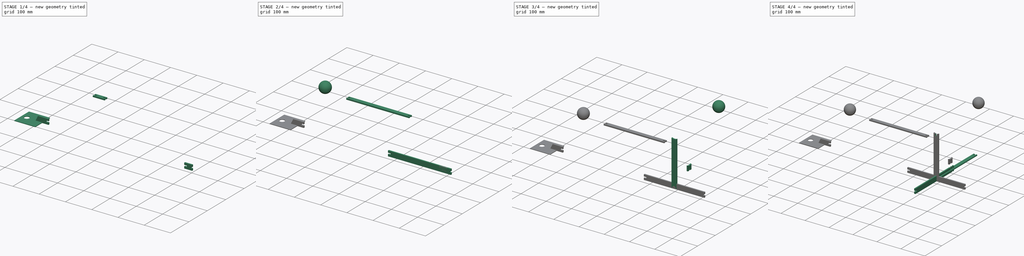
[diagram: build sequence overview — one tinted view per stage of 4, left to right]
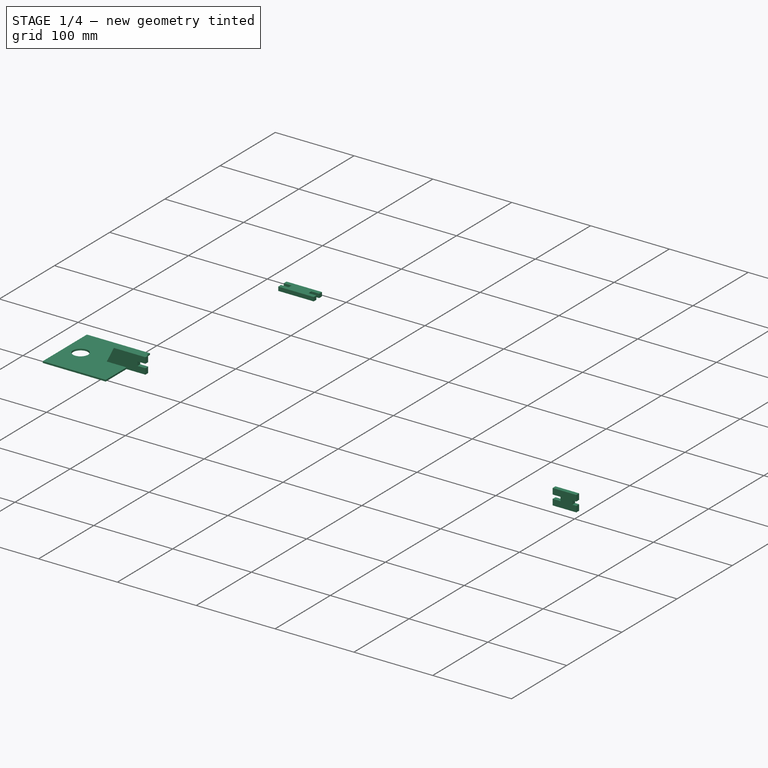
[diagram: stage 1 of 4 — iso view after this stage's code; geometry added in this stage tinted green]
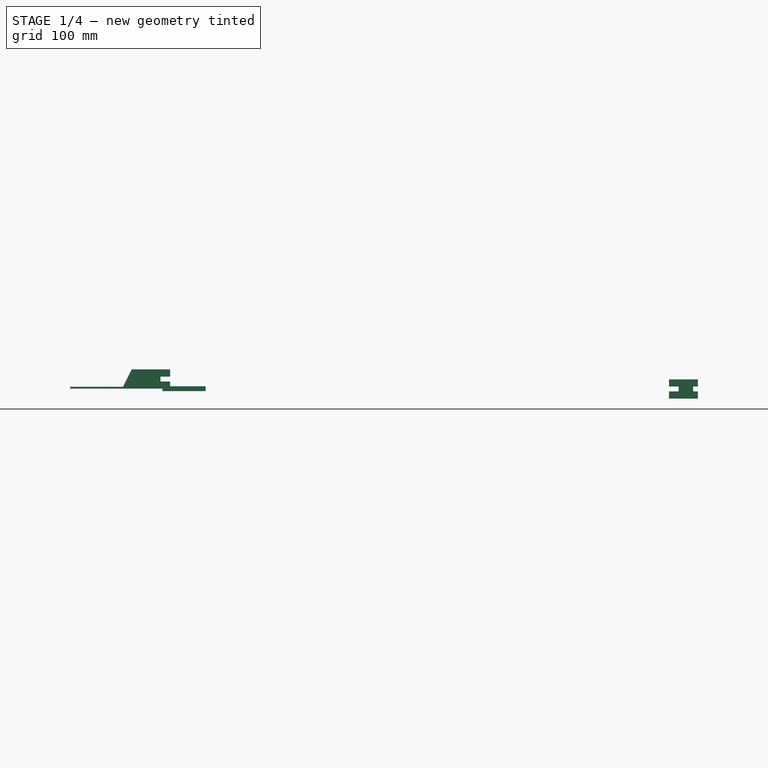
[diagram: stage 1 of 4 — front view after this stage's code; geometry added in this stage tinted green]
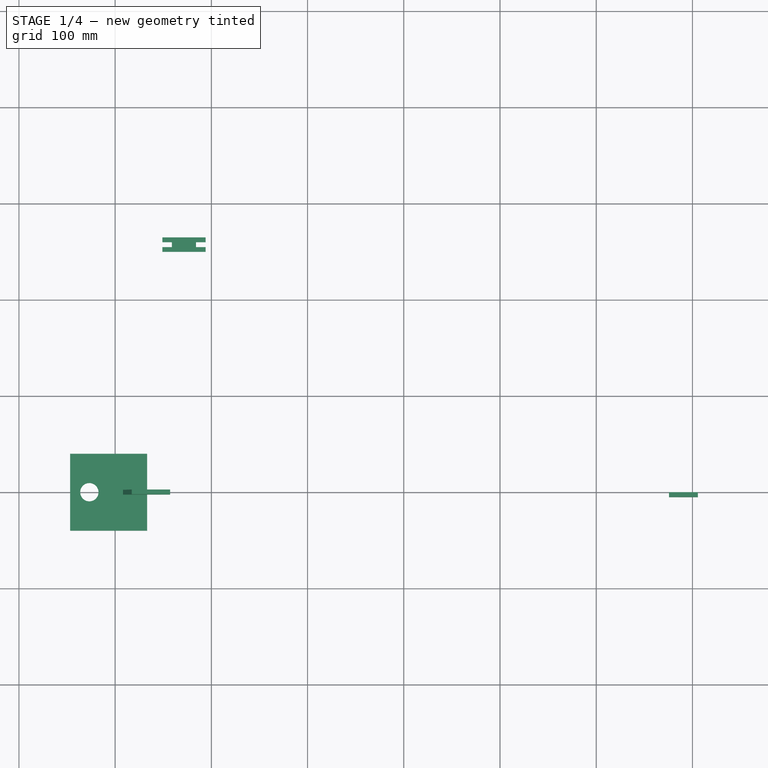
[diagram: stage 1 of 4 — top view after this stage's code; geometry added in this stage tinted green]
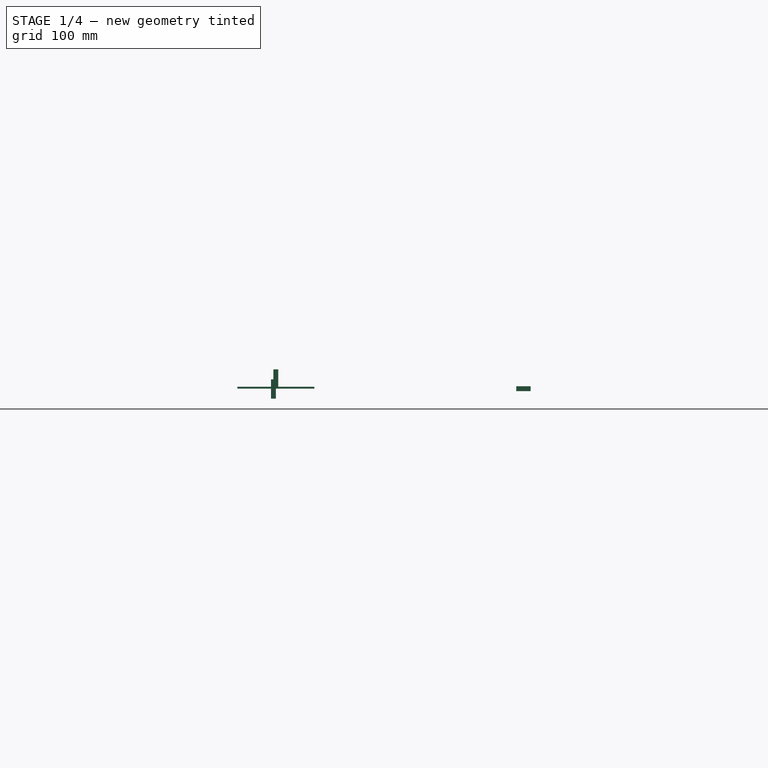
[diagram: stage 1 of 4 — right view after this stage's code; geometry added in this stage tinted green]
FCSTD DOCUMENT  (FreeCAD 1.0R39109 (Git))
Label: CalibrationRig
License: All rights reserved
LicenseURL: http://en.wikipedia.org/wiki/All_rights_reserved
objects: Sketcher::SketchObject×12, PartDesign::Pad×11, PartDesign::Body×9, Part::Sphere×2, App::Link×1, PartDesign::Pocket×1, App::Part×1
note: 71 computed .brp shape members not serialized (recipe doc carries the construction recipe); baked Part::Feature solids carry a one-line shape summary decoded from their .brp
EXTERNAL_REF file=../Master Document.FCStd obj=Spreadsheet

FEATURE [Sketcher::SketchObject] Sketch008  label="X-Axis Ball Holder Vertical Sketch"
  ArcFitTolerance = 1e-06
  AttachmentSupport = -> [XZ_Plane007]
  FullyConstrained = false
  MakeInternals = false
  MapMode = 5
  Placement = pos=(0,0,0) rot=(1,0,0;1.5708rad)
  expr: Constraints[15] = <<Monitor Chassis Parameters>>.GSCalibrationToolVerticalLegHeight
  expr: Constraints[16] = <<Monitor Chassis Parameters>>.GSCalibrationDefaultLegThickness + 0.5 * <<Monitor Chassis Parameters>>.GSPartFitExtraToleranceDistance
  expr: Constraints[17] = <<Monitor Chassis Parameters>>.GSCalibrationDefaultLegCutoutDepth
  expr: Constraints[19] = 5 * <<Monitor Chassis Parameters>>.GSCalibrationDefaultLegCutoutDepth
  expr: Constraints[20] = 4 * <<Monitor Chassis Parameters>>.GSCalibrationDefaultLegCutoutDepth
  expr: Constraints[22] = 0.5 * (<<Monitor Chassis Parameters>>.GSCalibrationToolVerticalLegHeight - <<Monitor Chassis Parameters>>.GSCalibrationDefaultLegThickness)
  sketch-geometry (8):
    g0: LineSegment StartX=-482.795 StartY=20 StartZ=0 EndX=-442.795 EndY=20 EndZ=0
    g1: LineSegment StartX=-442.795 StartY=20 StartZ=0 EndX=-442.795 EndY=12.5 EndZ=0
    g2: LineSegment StartX=-442.795 StartY=12.5 StartZ=0 EndX=-452.795 EndY=12.5 EndZ=0
    g3: LineSegment StartX=-452.795 StartY=12.5 StartZ=0 EndX=-452.795 EndY=7.4 EndZ=0
    g4: LineSegment StartX=-452.795 StartY=7.4 StartZ=0 EndX=-442.795 EndY=7.4 EndZ=0
    g5: LineSegment StartX=-442.795 StartY=7.4 StartZ=0 EndX=-442.795 EndY=0 EndZ=0
    g6: LineSegment StartX=-442.795 StartY=0 StartZ=0 EndX=-492.795 EndY=0 EndZ=0
    g7: LineSegment StartX=-492.795 StartY=0 StartZ=0 EndX=-482.795 EndY=20 EndZ=0
  constraints (23):
    c: Horizontal(g0)
    c: Coincident(g1,g0)
    c: Vertical(g1)
    c: Coincident(g2,g1)
    c: Horizontal(g2)
    c: Coincident(g3,g2)
    c: Vertical(g3)
    c: Coincident(g4,g3)
    c: Horizontal(g4)
    c: Coincident(g5,g4)
    c: Vertical(g5)
    c: Coincident(g6,g5)
    c: Horizontal(g6)
    c: Coincident(g7,g6)
    c: Coincident(g7,g0)
    c: DistanceY(g5,g0) = 20
    c: DistanceY(g4,g1) = 5.1
    c: DistanceX(g2,g1) = 10
    c: Vertical(g0,g5)
    c: DistanceX(g6,g5) = 50
    c: DistanceX(g0,g0) = 40
    c: Horizontal(g-1,g5)
    c: DistanceY(g1,g0) = 7.5
FEATURE [PartDesign::Pad] Pad007  label="X-Axis Ball Holder Vertical Pad"
  Direction = (0,-1,2e-16)
  Length = 2.5
  Length2 = 2.5
  Placement = pos=(0,0,0) rot=(1,0,0;1.5708rad)
  Profile = -> Sketch008
  ReferenceAxis = -> Sketch008 [N_Axis]
  Suppressed = false
  Type = 4
  expr: Length = 0.5 * <<Monitor Chassis Parameters>>.GSCalibrationDefaultLegThickness
  expr: Length2 = 0.5 * <<Monitor Chassis Parameters>>.GSCalibrationDefaultLegThickness
FEATURE [Sketcher::SketchObject] Sketch009  label="X-Axis Ball Holder Plate Sketch"
  ArcFitTolerance = 1e-06
  AttachmentSupport = -> [XY_Plane007]
  ExternalGeometry = -> [Sketch008]
  FullyConstrained = true
  MakeInternals = false
  MapMode = 5
  expr: Constraints[10] = <<Monitor Chassis Parameters>>.GSCalibrationToolGroundBallPlateWidth
  expr: Constraints[11] = 0.5 * <<Monitor Chassis Parameters>>.GSCalibrationToolGroundBallPlateLength
  expr: Constraints[12] = 20
  expr: Constraints[13] = <<Monitor Chassis Parameters>>.GSCalibrationToolGroundBallHolderHoleRadius
  expr: Constraints[14] = 0.3 * <<Monitor Chassis Parameters>>.GSCalibrationToolGroundBallPlateWidth
  expr: Constraints[9] = <<Monitor Chassis Parameters>>.GSCalibrationToolGroundBallPlateLength
  sketch-geometry (5):
    g0: LineSegment StartX=-466.795 StartY=40 StartZ=0 EndX=-546.795 EndY=40 EndZ=0
    g1: LineSegment StartX=-546.795 StartY=40 StartZ=0 EndX=-546.795 EndY=-40 EndZ=0
    g2: LineSegment StartX=-546.795 StartY=-40 StartZ=0 EndX=-466.795 EndY=-40 EndZ=0
    g3: LineSegment StartX=-466.795 StartY=-40 StartZ=0 EndX=-466.795 EndY=40 EndZ=0
    g4: Circle CenterX=-526.795 CenterY=0 CenterZ=0 NormalX=0 NormalY=0 NormalZ=1 AngleXU=0 Radius=9.5
  constraints (15):
    c: Coincident(g0,g1)
    c: Coincident(g1,g2)
    c: Coincident(g2,g3)
    c: Coincident(g3,g0)
    c: Horizontal(g0)
    c: Horizontal(g2)
    c: Vertical(g1)
    c: Vertical(g3)
    c: PointOnObject(g4,g-1)
    c: DistanceX(g0,g0) = 80
    c: DistanceY(g1,g0) = 80
    c: DistanceY(g-1,g0) = 40
    c: DistanceX(g0,g4) = 20
    c: Diameter(g4) = 19
    c: DistanceX(g2,g-3) = 24
FEATURE [PartDesign::Pad] Pad008  label="X-Axis Ball Holder Plate Pad"
  BaseFeature = -> Pad007
  Direction = (0,0,1)
  Length = 2
  Length2 = 10
  Placement = pos=(0,0,0) rot=(1,0,0;1.5708rad)
  Profile = -> Sketch009
  ReferenceAxis = -> Sketch009 [N_Axis]
  Suppressed = false
  Type = 0
  expr: Length = <<Monitor Chassis Parameters>>.GSCalibrationToolGroundBallHolderPlateThickness
FEATURE [PartDesign::Body] Body006  label="X-Axis Ball Holder Body"
  AllowCompound = false
  Group = -> [Sketch008,Pad007,Sketch009,Pad008]
  Origin = -> Origin007
  Placement = pos=(4.1,263,-9.7) rot=(0,0,1;0rad)
  Tip = -> Pad008
FEATURE [Sketcher::SketchObject] Sketch010  label="X Axis Far Leg Sketch Short Version"
  ArcFitTolerance = 1e-06
  AttachmentSupport = -> [XY_Plane006]
  FullyConstrained = false
  MakeInternals = false
  MapMode = 5
  expr: Constraints[26] = <<Monitor Chassis Parameters>>.GSCalibrationDefaultLegThickness + 0.5 * <<Monitor Chassis Parameters>>.GSPartFitExtraToleranceDistance
  expr: Constraints[27] = <<Monitor Chassis Parameters>>.GSCalibrationDefaultLegThickness + 0.5 * <<Monitor Chassis Parameters>>.GSPartFitExtraToleranceDistance
  expr: Constraints[28] = <<Monitor Chassis Parameters>>.GSCalibrationToolXAxisHorizontalLegWidth
  expr: Constraints[29] = 0.5 * (<<Monitor Chassis Parameters>>.GSCalibrationToolXAxisHorizontalLegWidth - <<Monitor Chassis Parameters>>.GSCalibrationDefaultLegThickness)
  expr: Constraints[30] = 0.5 * (<<Monitor Chassis Parameters>>.GSCalibrationToolXAxisHorizontalLegWidth - <<Monitor Chassis Parameters>>.GSCalibrationDefaultLegThickness)
  expr: Constraints[31] = <<Monitor Chassis Parameters>>.GSCalibrationDefaultLegCutoutDepth
  expr: Constraints[32] = <<Monitor Chassis Parameters>>.GSCalibrationDefaultLegCutoutDepth
  expr: Constraints[33] = <<Monitor Chassis Parameters>>.GSCalibrationToolXAxisFarLegLengthShortVersion
  sketch-geometry (12):
    g0: LineSegment StartX=-405.965 StartY=264.845 StartZ=0 EndX=-405.965 EndY=259.845 EndZ=0
    g1: LineSegment StartX=-405.965 StartY=259.845 StartZ=0 EndX=-415.965 EndY=259.845 EndZ=0
    g2: LineSegment StartX=-415.965 StartY=259.845 StartZ=0 EndX=-415.965 EndY=254.745 EndZ=0
    g3: LineSegment StartX=-415.965 StartY=254.745 StartZ=0 EndX=-405.965 EndY=254.745 EndZ=0
    g4: LineSegment StartX=-405.965 StartY=254.745 StartZ=0 EndX=-405.965 EndY=249.845 EndZ=0
    g5: LineSegment StartX=-405.965 StartY=249.845 StartZ=0 EndX=-450.965 EndY=249.845 EndZ=0
    g6: LineSegment StartX=-450.965 StartY=249.845 StartZ=0 EndX=-450.965 EndY=254.745 EndZ=0
    g7: LineSegment StartX=-450.965 StartY=254.745 StartZ=0 EndX=-440.965 EndY=254.745 EndZ=0
    g8: LineSegment StartX=-440.965 StartY=254.745 StartZ=0 EndX=-440.965 EndY=259.845 EndZ=0
    g9: LineSegment StartX=-440.965 StartY=259.845 StartZ=0 EndX=-450.965 EndY=259.845 EndZ=0
    g10: LineSegment StartX=-450.965 StartY=259.845 StartZ=0 EndX=-450.965 EndY=264.845 EndZ=0
    g11: LineSegment StartX=-450.965 StartY=264.845 StartZ=0 EndX=-405.965 EndY=264.845 EndZ=0
  constraints (34):
    c: Vertical(g0)
    c: Coincident(g1,g0)
    c: Horizontal(g1)
    c: Coincident(g2,g1)
    c: Vertical(g2)
    c: Coincident(g3,g2)
    c: Horizontal(g3)
    c: Coincident(g4,g3)
    c: Vertical(g4)
    c: Coincident(g5,g4)
    c: Horizontal(g5)
    c: Coincident(g6,g5)
    c: Vertical(g6)
    c: Coincident(g7,g6)
    c: Horizontal(g7)
    c: Coincident(g8,g7)
    c: Vertical(g8)
    c: Coincident(g9,g8)
    c: Horizontal(g9)
    c: Coincident(g10,g9)
    c: Vertical(g10)
    c: Coincident(g11,g10)
    c: Coincident(g11,g0)
    c: Horizontal(g11)
    c: Vertical(g10,g5)
    c: Vertical(g0,g4)
    c: DistanceY(g7,g8) = 5.1
    c: DistanceY(g2,g1) = 5.1
    c: DistanceY(g5,g10) = 15
    c: DistanceY(g9,g10) = 5
    c: DistanceY(g0,g0) = 5
    c: DistanceX(g6,g7) = 10
    c: DistanceX(g1,g0) = 10
    c: DistanceX(g10,g0) = 45
FEATURE [PartDesign::Pad] Pad009  label="X Axis Far Leg Pad Short Version"
  Direction = (0,0,1)
  Length = 2.5
  Length2 = 2.5
  Profile = -> Sketch010
  ReferenceAxis = -> Sketch010 [N_Axis]
  Suppressed = false
  Type = 4
  expr: Length = 0.5 * <<Monitor Chassis Parameters>>.GSCalibrationDefaultLegThickness
  expr: Length2 = 0.5 * <<Monitor Chassis Parameters>>.GSCalibrationDefaultLegThickness
FEATURE [PartDesign::Body] Body007  label="X Axis Far Leg Short Version"
  AllowCompound = false
  Group = -> [Sketch010,Pad009]
  Origin = -> Origin008
  Placement = pos=(92.8,70.8,0) rot=(0,0,1;0rad)
  Tip = -> Pad009
FEATURE [Sketcher::SketchObject] Sketch011  label="X Axis Near Leg Sketch Short Version"
  ArcFitTolerance = 1e-06
  AttachmentSupport = -> [XZ_Plane005]
  FullyConstrained = false
  MakeInternals = false
  MapMode = 5
  Placement = pos=(0,0,0) rot=(1,0,0;1.5708rad)
  expr: Constraints[24] = <<Monitor Chassis Parameters>>.GSCalibrationToolVerticalLegHeight
  expr: Constraints[25] = <<Monitor Chassis Parameters>>.GSCalibrationDefaultLegCutoutWidth
  expr: Constraints[26] = <<Monitor Chassis Parameters>>.GSCalibrationDefaultLegCutoutWidth
  expr: Constraints[27] = 0.5 * (<<Monitor Chassis Parameters>>.GSCalibrationToolVerticalLegHeight - <<Monitor Chassis Parameters>>.GSCalibrationDefaultLegCutoutWidth)
  expr: Constraints[28] = <<Monitor Chassis Parameters>>.GSCalibrationDefaultLegCutoutDepth
  expr: Constraints[29] = <<Monitor Chassis Parameters>>.GSCalibrationDefaultLegThickness
  expr: Constraints[30] = <<Monitor Chassis Parameters>>.GSCalibrationToolXAxisNearLegLengthShortVersion
  expr: Constraints[33] = 0.5 * (<<Monitor Chassis Parameters>>.GSCalibrationToolVerticalLegHeight - <<Monitor Chassis Parameters>>.GSCalibrationDefaultLegCutoutWidth)
  sketch-geometry (12):
    g0: LineSegment StartX=75.6624 StartY=9.716 StartZ=0 EndX=75.6624 EndY=2.216 EndZ=0
    g1: LineSegment StartX=75.6624 StartY=2.216 StartZ=0 EndX=85.6624 EndY=2.216 EndZ=0
    g2: LineSegment StartX=85.6624 StartY=2.216 StartZ=0 EndX=85.6624 EndY=-2.784 EndZ=0
    g3: LineSegment StartX=85.6624 StartY=-2.784 StartZ=0 EndX=75.6624 EndY=-2.784 EndZ=0
    g4: LineSegment StartX=75.6624 StartY=-2.784 StartZ=0 EndX=75.6624 EndY=-10.284 EndZ=0
    g5: LineSegment StartX=75.6624 StartY=-10.284 StartZ=0 EndX=105.662 EndY=-10.284 EndZ=0
    g6: LineSegment StartX=105.662 StartY=-10.284 StartZ=0 EndX=105.662 EndY=-2.784 EndZ=0
    g7: LineSegment StartX=105.662 StartY=-2.784 StartZ=0 EndX=100.662 EndY=-2.784 EndZ=0
    g8: LineSegment StartX=100.662 StartY=-2.784 StartZ=0 EndX=100.662 EndY=2.216 EndZ=0
    g9: LineSegment StartX=100.662 StartY=2.216 StartZ=0 EndX=105.662 EndY=2.216 EndZ=0
    g10: LineSegment StartX=105.662 StartY=2.216 StartZ=0 EndX=105.662 EndY=9.716 EndZ=0
    g11: LineSegment StartX=75.6624 StartY=9.716 StartZ=0 EndX=105.662 EndY=9.716 EndZ=0
  constraints (34):
    c: Vertical(g0)
    c: Coincident(g1,g0)
    c: Horizontal(g1)
    c: Coincident(g2,g1)
    c: Vertical(g2)
    c: Coincident(g3,g2)
    c: Horizontal(g3)
    c: Coincident(g4,g3)
    c: Vertical(g4)
    c: Coincident(g5,g4)
    c: Horizontal(g5)
    c: Coincident(g6,g5)
    c: Vertical(g6)
    c: Coincident(g7,g6)
    c: Horizontal(g7)
    c: Coincident(g8,g7)
    c: Vertical(g8)
    c: Coincident(g9,g8)
    c: Horizontal(g9)
    c: Coincident(g10,g9)
    c: Vertical(g10)
    c: Coincident(g11,g0)
    c: Coincident(g11,g10)
    c: Horizontal(g11)
    c: DistanceY(g4,g0) = 20
    c: DistanceY(g7,g8) = 5
    c: DistanceY(g2,g1) = 5
    c: DistanceY(g8,g10) = 7.5
    c: DistanceX(g0,g1) = 10
    c: DistanceX(g7,g6) = 5
    c: DistanceX(g4,g5) = 30
    c: Vertical(g4,g0)
    c: Vertical(g10,g5)
    c: DistanceY(g0,g0) = 7.5
FEATURE [PartDesign::Pad] Pad010  label="X Axis Near Leg Pad Short Version"
  Direction = (0,-1,2e-16)
  Length = 5
  Length2 = 10
  Placement = pos=(0,0,0) rot=(1,0,0;1.5708rad)
  Profile = -> Sketch011
  ReferenceAxis = -> Sketch011 [N_Axis]
  Suppressed = false
  Type = 0
  expr: Length = <<Monitor Chassis Parameters>>.GSCalibrationDefaultLegThickness
FEATURE [PartDesign::Body] Body008  label="X Axis Near Leg Short Version"
  AllowCompound = false
  Group = -> [Sketch011,Pad010]
  Origin = -> Origin009
  Placement = pos=(-117.7,296,0.3) rot=(0,0,1;0rad)
  Tip = -> Pad010
FEATURE [App::Part] Part  label="Calibration Rig"
  Group = -> [Body,Body001,Body002,Sphere,Body003,Body004,Body005,Body006,Body007,Body008]
  Origin = -> Origin
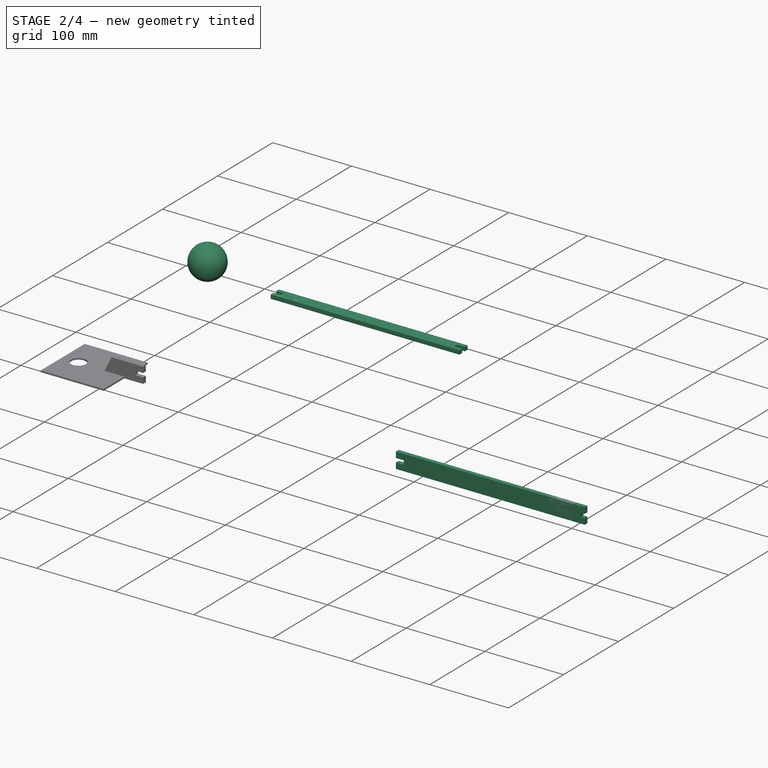
[diagram: stage 2 of 4 — iso view after this stage's code; geometry added in this stage tinted green]
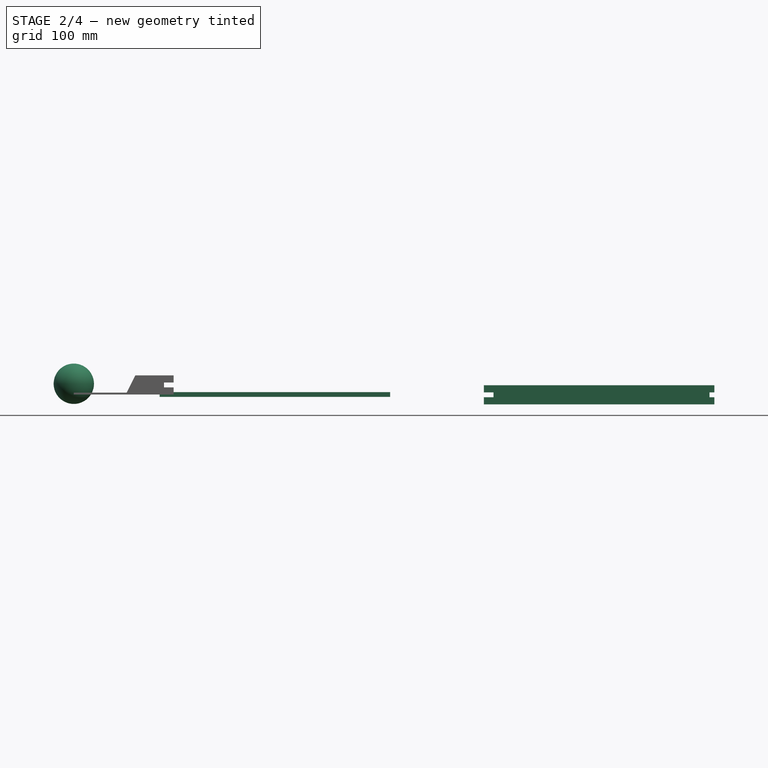
[diagram: stage 2 of 4 — front view after this stage's code; geometry added in this stage tinted green]
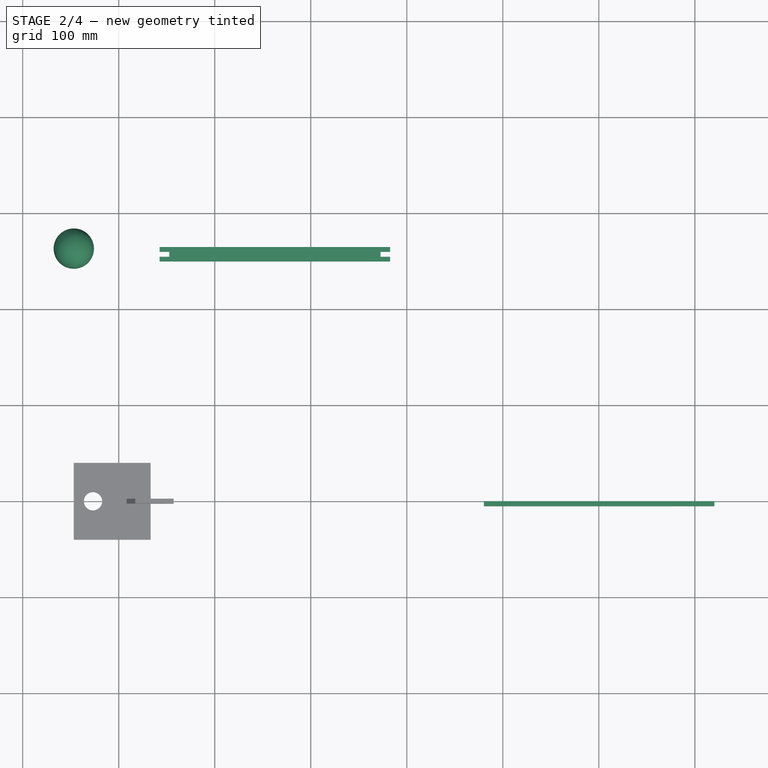
[diagram: stage 2 of 4 — top view after this stage's code; geometry added in this stage tinted green]
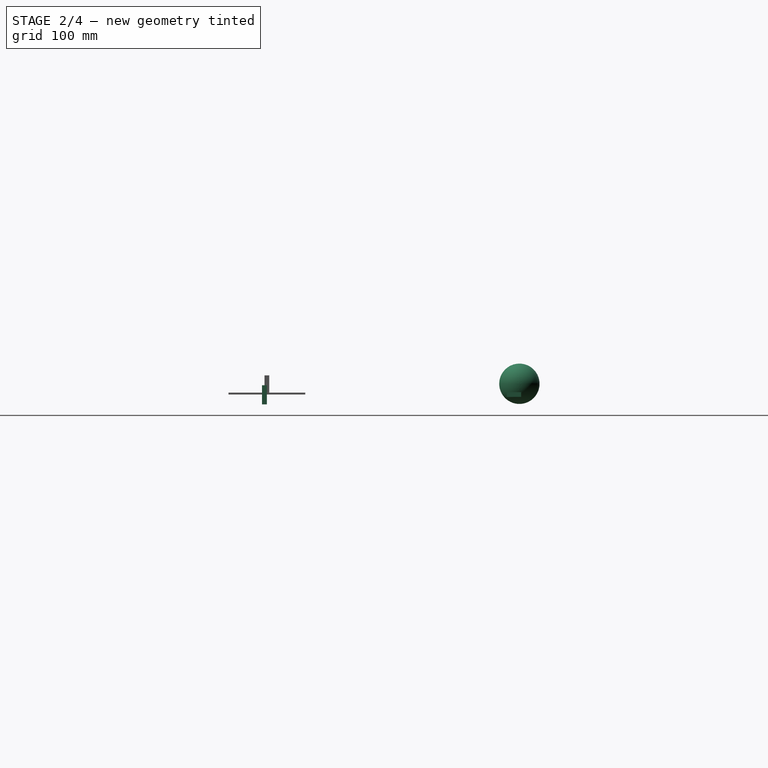
[diagram: stage 2 of 4 — right view after this stage's code; geometry added in this stage tinted green]
FEATURE [PartDesign::Body] Body003  label="High Ball Holder Cross Body"
  AllowCompound = false
  Group = -> [Sketch005,Pad004]
  Origin = -> Origin004
  Placement = pos=(0,168.1,125.7) rot=(0,0,1;0rad)
  Tip = -> Pad004
FEATURE [Sketcher::SketchObject] Sketch006  label="X Axis Near Leg Sketch"
  ArcFitTolerance = 1e-06
  AttachmentSupport = -> [XZ_Plane005]
  FullyConstrained = false
  MakeInternals = false
  MapMode = 5
  Placement = pos=(0,0,0) rot=(1,0,0;1.5708rad)
  expr: Constraints[24] = <<Monitor Chassis Parameters>>.GSCalibrationToolVerticalLegHeight
  expr: Constraints[25] = <<Monitor Chassis Parameters>>.GSCalibrationDefaultLegCutoutWidth
  expr: Constraints[26] = <<Monitor Chassis Parameters>>.GSCalibrationDefaultLegCutoutWidth + 0.5 * <<Monitor Chassis Parameters>>.GSPartFitExtraToleranceDistance
  expr: Constraints[27] = 0.5 * (<<Monitor Chassis Parameters>>.GSCalibrationToolVerticalLegHeight - <<Monitor Chassis Parameters>>.GSCalibrationDefaultLegCutoutWidth)
  expr: Constraints[28] = <<Monitor Chassis Parameters>>.GSCalibrationDefaultLegCutoutDepth
  expr: Constraints[29] = <<Monitor Chassis Parameters>>.GSCalibrationDefaultLegThickness
  expr: Constraints[30] = <<Monitor Chassis Parameters>>.GSCalibrationToolXAxisNearLegLength
  expr: Constraints[33] = 0.5 * (<<Monitor Chassis Parameters>>.GSCalibrationToolVerticalLegHeight - <<Monitor Chassis Parameters>>.GSCalibrationDefaultLegCutoutWidth)
  sketch-geometry (12):
    g0: LineSegment StartX=-119.681 StartY=9.716 StartZ=0 EndX=-119.681 EndY=2.216 EndZ=0
    g1: LineSegment StartX=-119.681 StartY=2.216 StartZ=0 EndX=-109.681 EndY=2.216 EndZ=0
    g2: LineSegment StartX=-109.681 StartY=2.216 StartZ=0 EndX=-109.681 EndY=-2.884 EndZ=0
    g3: LineSegment StartX=-109.681 StartY=-2.884 StartZ=0 EndX=-119.681 EndY=-2.884 EndZ=0
    g4: LineSegment StartX=-119.681 StartY=-2.884 StartZ=0 EndX=-119.681 EndY=-10.284 EndZ=0
    g5: LineSegment StartX=-119.681 StartY=-10.284 StartZ=0 EndX=120.319 EndY=-10.284 EndZ=0
    g6: LineSegment StartX=120.319 StartY=-10.284 StartZ=0 EndX=120.319 EndY=-2.784 EndZ=0
    g7: LineSegment StartX=120.319 StartY=-2.784 StartZ=0 EndX=115.319 EndY=-2.784 EndZ=0
    g8: LineSegment StartX=115.319 StartY=-2.784 StartZ=0 EndX=115.319 EndY=2.216 EndZ=0
    g9: LineSegment StartX=115.319 StartY=2.216 StartZ=0 EndX=120.319 EndY=2.216 EndZ=0
    g10: LineSegment StartX=120.319 StartY=2.216 StartZ=0 EndX=120.319 EndY=9.716 EndZ=0
    g11: LineSegment StartX=-119.681 StartY=9.716 StartZ=0 EndX=120.319 EndY=9.716 EndZ=0
  constraints (34):
    c: Vertical(g0)
    c: Coincident(g1,g0)
    c: Horizontal(g1)
    c: Coincident(g2,g1)
    c: Vertical(g2)
    c: Coincident(g3,g2)
    c: Horizontal(g3)
    c: Coincident(g4,g3)
    c: Vertical(g4)
    c: Coincident(g5,g4)
    c: Horizontal(g5)
    c: Coincident(g6,g5)
    c: Vertical(g6)
    c: Coincident(g7,g6)
    c: Horizontal(g7)
    c: Coincident(g8,g7)
    c: Vertical(g8)
    c: Coincident(g9,g8)
    c: Horizontal(g9)
    c: Coincident(g10,g9)
    c: Vertical(g10)
    c: Coincident(g11,g0)
    c: Coincident(g11,g10)
    c: Horizontal(g11)
    c: DistanceY(g4,g0) = 20
    c: DistanceY(g7,g8) = 5
    c: DistanceY(g2,g1) = 5.1
    c: DistanceY(g8,g10) = 7.5
    c: DistanceX(g0,g1) = 10
    c: DistanceX(g7,g6) = 5
    c: DistanceX(g4,g5) = 240
    c: Vertical(g4,g0)
    c: Vertical(g10,g5)
    c: DistanceY(g0,g0) = 7.5
FEATURE [PartDesign::Pad] Pad005  label="X Axis Near Leg Pad"
  Direction = (0,-1,2e-16)
  Length = 5
  Length2 = 10
  Placement = pos=(0,0,0) rot=(1,0,0;1.5708rad)
  Profile = -> Sketch006
  ReferenceAxis = -> Sketch006 [N_Axis]
  Suppressed = false
  Type = 0
  expr: Length = <<Monitor Chassis Parameters>>.GSCalibrationDefaultLegThickness
FEATURE [PartDesign::Body] Body004  label="X Axis Near Leg"
  AllowCompound = false
  Group = -> [Sketch006,Pad005]
  Origin = -> Origin005
  Placement = pos=(-117.7,259.8,0.3) rot=(0,0,1;0rad)
  Tip = -> Pad005
FEATURE [Sketcher::SketchObject] Sketch007  label="X Axis Far Leg Sketch"
  ArcFitTolerance = 1e-06
  AttachmentSupport = -> [XY_Plane006]
  FullyConstrained = false
  MakeInternals = false
  MapMode = 5
  expr: Constraints[26] = <<Monitor Chassis Parameters>>.GSCalibrationDefaultLegThickness + 0.5 * <<Monitor Chassis Parameters>>.GSPartFitExtraToleranceDistance
  expr: Constraints[27] = <<Monitor Chassis Parameters>>.GSCalibrationDefaultLegThickness + 0.5 * <<Monitor Chassis Parameters>>.GSPartFitExtraToleranceDistance
  expr: Constraints[28] = <<Monitor Chassis Parameters>>.GSCalibrationToolXAxisHorizontalLegWidth
  expr: Constraints[29] = 0.5 * (<<Monitor Chassis Parameters>>.GSCalibrationToolXAxisHorizontalLegWidth - <<Monitor Chassis Parameters>>.GSCalibrationDefaultLegThickness)
  expr: Constraints[30] = 0.5 * (<<Monitor Chassis Parameters>>.GSCalibrationToolXAxisHorizontalLegWidth - <<Monitor Chassis Parameters>>.GSCalibrationDefaultLegThickness)
  expr: Constraints[31] = <<Monitor Chassis Parameters>>.GSCalibrationDefaultLegCutoutDepth
  expr: Constraints[32] = <<Monitor Chassis Parameters>>.GSCalibrationDefaultLegCutoutDepth
  expr: Constraints[33] = <<Monitor Chassis Parameters>>.GSCalibrationToolXAxisFarLegLength
  sketch-geometry (12):
    g0: LineSegment StartX=-217.369 StartY=264.845 StartZ=0 EndX=-217.369 EndY=259.845 EndZ=0
    g1: LineSegment StartX=-217.369 StartY=259.845 StartZ=0 EndX=-227.369 EndY=259.845 EndZ=0
    g2: LineSegment StartX=-227.369 StartY=259.845 StartZ=0 EndX=-227.369 EndY=254.745 EndZ=0
    g3: LineSegment StartX=-227.369 StartY=254.745 StartZ=0 EndX=-217.369 EndY=254.745 EndZ=0
    g4: LineSegment StartX=-217.369 StartY=254.745 StartZ=0 EndX=-217.369 EndY=249.845 EndZ=0
    g5: LineSegment StartX=-217.369 StartY=249.845 StartZ=0 EndX=-457.369 EndY=249.845 EndZ=0
    g6: LineSegment StartX=-457.369 StartY=249.845 StartZ=0 EndX=-457.369 EndY=254.745 EndZ=0
    g7: LineSegment StartX=-457.369 StartY=254.745 StartZ=0 EndX=-447.369 EndY=254.745 EndZ=0
    g8: LineSegment StartX=-447.369 StartY=254.745 StartZ=0 EndX=-447.369 EndY=259.845 EndZ=0
    g9: LineSegment StartX=-447.369 StartY=259.845 StartZ=0 EndX=-457.369 EndY=259.845 EndZ=0
    g10: LineSegment StartX=-457.369 StartY=259.845 StartZ=0 EndX=-457.369 EndY=264.845 EndZ=0
    g11: LineSegment StartX=-457.369 StartY=264.845 StartZ=0 EndX=-217.369 EndY=264.845 EndZ=0
  constraints (34):
    c: Vertical(g0)
    c: Coincident(g1,g0)
    c: Horizontal(g1)
    c: Coincident(g2,g1)
    c: Vertical(g2)
    c: Coincident(g3,g2)
    c: Horizontal(g3)
    c: Coincident(g4,g3)
    c: Vertical(g4)
    c: Coincident(g5,g4)
    c: Horizontal(g5)
    c: Coincident(g6,g5)
    c: Vertical(g6)
    c: Coincident(g7,g6)
    c: Horizontal(g7)
    c: Coincident(g8,g7)
    c: Vertical(g8)
    c: Coincident(g9,g8)
    c: Horizontal(g9)
    c: Coincident(g10,g9)
    c: Vertical(g10)
    c: Coincident(g11,g10)
    c: Coincident(g11,g0)
    c: Horizontal(g11)
    c: Vertical(g10,g5)
    c: Vertical(g0,g4)
    c: DistanceY(g7,g8) = 5.1
    c: DistanceY(g2,g1) = 5.1
    c: DistanceY(g5,g10) = 15
    c: DistanceY(g9,g10) = 5
    c: DistanceY(g0,g0) = 5
    c: DistanceX(g6,g7) = 10
    c: DistanceX(g1,g0) = 10
    c: DistanceX(g10,g0) = 240
FEATURE [PartDesign::Pad] Pad006  label="X Axis Far Leg Pad"
  Direction = (0,0,1)
  Length = 2.5
  Length2 = 2.5
  Profile = -> Sketch007
  ReferenceAxis = -> Sketch007 [N_Axis]
  Suppressed = false
  Type = 4
  expr: Length = 0.5 * <<Monitor Chassis Parameters>>.GSCalibrationDefaultLegThickness
  expr: Length2 = 0.5 * <<Monitor Chassis Parameters>>.GSCalibrationDefaultLegThickness
FEATURE [PartDesign::Body] Body005  label="X Axis Far Leg"
  AllowCompound = false
  Group = -> [Sketch007,Pad006]
  Origin = -> Origin006
  Tip = -> Pad006
FEATURE [Part::Sphere] Sphere001  label="Test Golf Ball 2"
  Angle1 = -90
  Angle2 = 90
  Angle3 = 360
  AttacherType = Attacher::AttachEngine3D
  Placement = pos=(-546.8,263,11.2) rot=(0,0,1;0rad)
  Radius = 21
  expr: Radius = 21
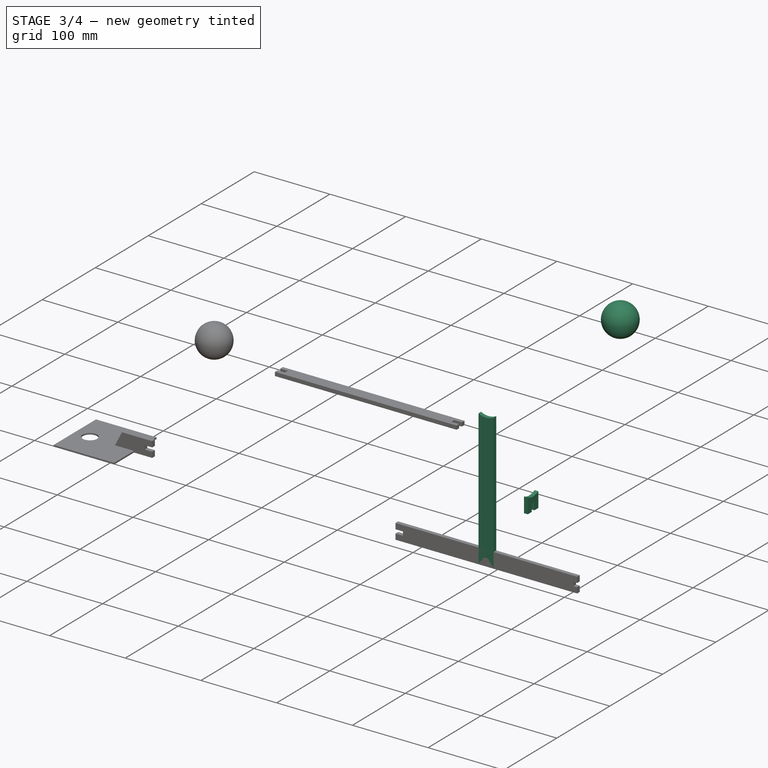
[diagram: stage 3 of 4 — iso view after this stage's code; geometry added in this stage tinted green]
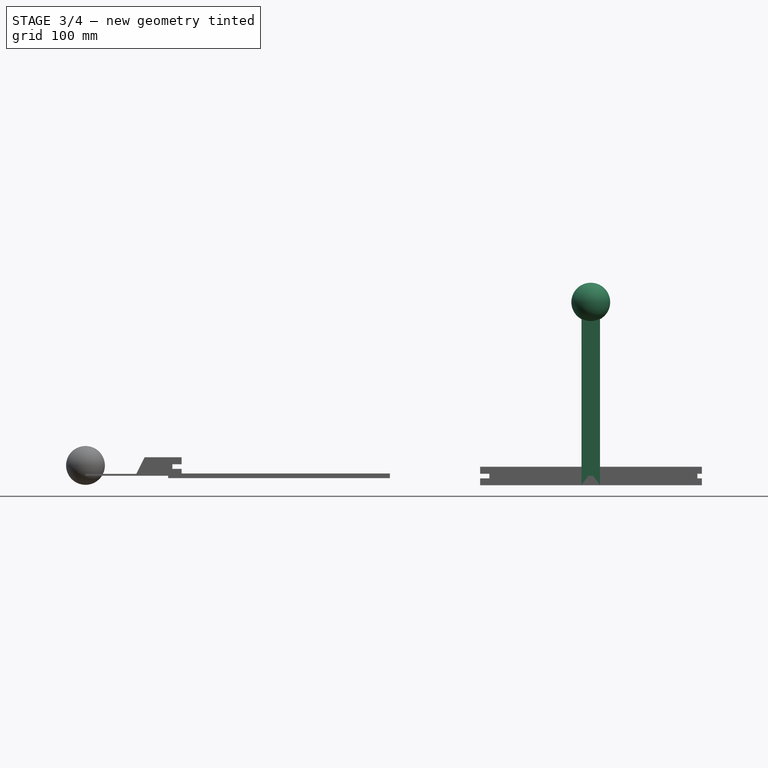
[diagram: stage 3 of 4 — front view after this stage's code; geometry added in this stage tinted green]
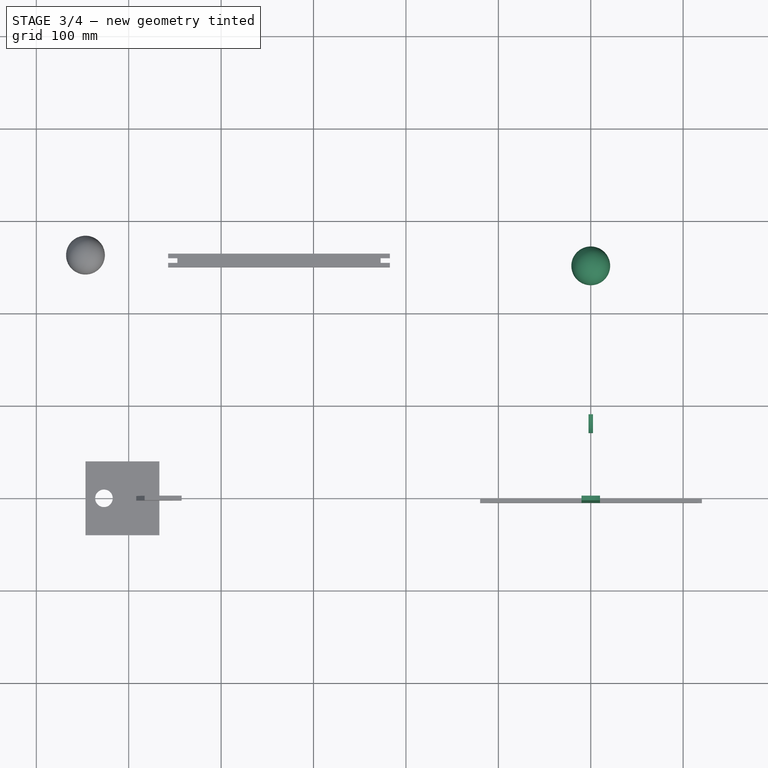
[diagram: stage 3 of 4 — top view after this stage's code; geometry added in this stage tinted green]
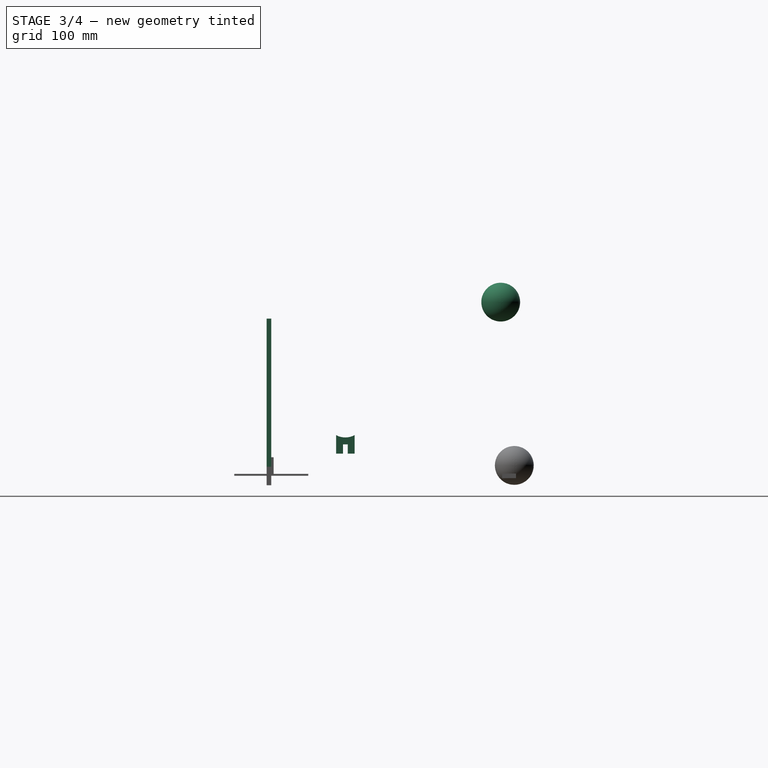
[diagram: stage 3 of 4 — right view after this stage's code; geometry added in this stage tinted green]
FEATURE [PartDesign::Body] Body001  label="Z-Axis Leg Body"
  AllowCompound = false
  Group = -> [Sketch002,Pad002]
  Origin = -> Origin002
  Placement = pos=(0,167.1,0) rot=(0,0,1;0rad)
  Tip = -> Pad002
FEATURE [Sketcher::SketchObject] Sketch003  label="High Ball Holder Sketch"
  ArcFitTolerance = 1e-06
  AttachmentSupport = -> [XZ_Plane003]
  FullyConstrained = false
  MakeInternals = false
  MapMode = 5
  Placement = pos=(0,0,0) rot=(1,0,0;1.5708rad)
  expr: Constraints[17] = <<Monitor Chassis Parameters>>.GSCalibrationToolVerticalLegHeight
  expr: Constraints[18] = 21
  expr: Constraints[19] = <<Monitor Chassis Parameters>>.GSCalibrationHighBallCenterHeight
  expr: Constraints[21] = 0.5 * <<Monitor Chassis Parameters>>.GSCalibrationToolVerticalLegHeight
  expr: Constraints[22] = <<Monitor Chassis Parameters>>.GSCalibrationDefaultLegThickness + 0.5 * <<Monitor Chassis Parameters>>.GSPartFitExtraToleranceDistance
  expr: Constraints[23] = 0.5 * (<<Monitor Chassis Parameters>>.GSCalibrationToolVerticalLegHeight - <<Monitor Chassis Parameters>>.GSCalibrationDefaultLegThickness)
  sketch-geometry (8):
    g0: LineSegment StartX=-2.52371 StartY=-10 StartZ=0 EndX=-2.52371 EndY=0 EndZ=0
    g1: LineSegment StartX=-2.52371 StartY=-10 StartZ=0 EndX=-10.0237 EndY=-10 EndZ=0
    g2: LineSegment StartX=-10.0237 StartY=-10 StartZ=0 EndX=-10.0237 EndY=170 EndZ=0
    g3: LineSegment StartX=-2.52371 StartY=0 StartZ=0 EndX=2.57629 EndY=0 EndZ=0
    g4: LineSegment StartX=2.57629 StartY=0 StartZ=0 EndX=2.57629 EndY=-10 EndZ=0
    g5: LineSegment StartX=2.57629 StartY=-10 StartZ=0 EndX=9.97629 EndY=-10 EndZ=0
    g6: LineSegment StartX=9.97629 StartY=-10 StartZ=0 EndX=9.97629 EndY=170 EndZ=0
    g7: ArcOfCircle CenterX=-0.0237128 CenterY=188.466 CenterZ=0 NormalX=0 NormalY=0 NormalZ=1 AngleXU=0 Radius=21 StartAngle=4.21607 EndAngle=5.20871
  constraints (24):
    c: PointOnObject(g0,g-1)
    c: Vertical(g0)
    c: Coincident(g1,g0)
    c: Horizontal(g1)
    c: Coincident(g2,g1)
    c: Vertical(g2)
    c: Coincident(g3,g0)
    c: PointOnObject(g3,g-1)
    c: Coincident(g4,g3)
    c: Vertical(g4)
    c: Coincident(g5,g4)
    c: Horizontal(g5)
    c: Coincident(g6,g5)
    c: Vertical(g6)
    c: Horizontal(g2,g6)
    c: Coincident(g7,g2)
    c: Coincident(g7,g6)
    c: DistanceX(g1,g5) = 20
    c: Radius(g7) = 21
    c: DistanceY(g5,g6) = 180
    c: Horizontal(g1,g5)
    c: DistanceY(g0,g0) = 10
    c: DistanceX(g0,g3) = 5.1
    c: DistanceX(g1,g0) = 7.5
FEATURE [PartDesign::Pad] Pad003  label="High Ball Holder Pad"
  Direction = (0,-1,2e-16)
  Length = 5
  Length2 = 10
  Placement = pos=(0,0,0) rot=(1,0,0;1.5708rad)
  Profile = -> Sketch003
  ReferenceAxis = -> Sketch003 [N_Axis]
  Suppressed = false
  Type = 0
  expr: Length = <<Monitor Chassis Parameters>>.GSCalibrationDefaultLegThickness
FEATURE [PartDesign::Body] Body002  label="High Ball Holder Body"
  AllowCompound = false
  Group = -> [Sketch003,Pad003,Sketch004,Pocket]
  Origin = -> Origin003
  Placement = pos=(0.1,250.7,-1.1e-15) rot=(0,0,1;0rad)
  Tip = -> Pocket
FEATURE [Part::Sphere] Sphere  label="Test Golf Ball 1"
  Angle1 = -90
  Angle2 = 90
  Angle3 = 360
  AttacherType = Attacher::AttachEngine3D
  Placement = pos=(0,248.3,187.9) rot=(0,0,1;0rad)
  Radius = 21
  expr: Radius = 21
FEATURE [Sketcher::SketchObject] Sketch005  label="High Ball Holder Cross Sketch"
  ArcFitTolerance = 1e-06
  AttachmentSupport = -> [YZ_Plane004]
  FullyConstrained = false
  MakeInternals = false
  MapMode = 5
  Placement = pos=(0,0,0) rot=(0.57735,0.57735,0.57735;2.0944rad)
  expr: Constraints[17] = <<Monitor Chassis Parameters>>.GSCalibrationToolVerticalBallHolderCutoutDepth
  expr: Constraints[20] = <<Monitor Chassis Parameters>>.GSCalibrationToolBallHolderThickness + 0.5 * <<Monitor Chassis Parameters>>.GSPartFitExtraToleranceDistance
  expr: Constraints[21] = <<Monitor Chassis Parameters>>.GSCalibrationToolVerticalBallHolderCutoutDepth
  expr: Constraints[22] = 0.5 * (<<Monitor Chassis Parameters>>.GSCalibrationToolVerticalBallHolderWidth - <<Monitor Chassis Parameters>>.GSCalibrationToolBallHolderThickness)
  expr: Constraints[2] = <<Monitor Chassis Parameters>>.GSCalibrationToolVerticalBallHolderWidth
  expr: Constraints[5] = <<Monitor Chassis Parameters>>.GSGolfBallRadius
  sketch-geometry (8):
    g0: LineSegment StartX=90.155 StartY=24.0073 StartZ=0 EndX=90.155 EndY=44.0073 EndZ=0
    g1: LineSegment StartX=70.155 StartY=44.0073 StartZ=0 EndX=70.155 EndY=24.0073 EndZ=0
    g2: ArcOfCircle CenterX=80.155 CenterY=62.4735 CenterZ=0 NormalX=0 NormalY=0 NormalZ=1 AngleXU=0 Radius=21 StartAngle=4.21607 EndAngle=5.20871
    g3: LineSegment StartX=70.155 StartY=24.0073 StartZ=0 EndX=77.655 EndY=24.0073 EndZ=0
    g4: LineSegment StartX=77.655 StartY=24.0073 StartZ=0 EndX=77.655 EndY=34.0073 EndZ=0
    g5: LineSegment StartX=77.655 StartY=34.0073 StartZ=0 EndX=82.755 EndY=34.0073 EndZ=0
    g6: LineSegment StartX=82.755 StartY=34.0073 StartZ=0 EndX=82.755 EndY=24.0073 EndZ=0
    g7: LineSegment StartX=82.755 StartY=24.0073 StartZ=0 EndX=90.155 EndY=24.0073 EndZ=0
  constraints (23):
    c: Vertical(g0)
    c: Vertical(g1)
    c: DistanceX(g1,g0) = 20
    c: Coincident(g2,g1)
    c: Coincident(g2,g0)
    c: Radius(g2) = 21
    c: Coincident(g3,g1)
    c: Horizontal(g3)
    c: Coincident(g4,g3)
    c: Vertical(g4)
    c: Coincident(g5,g4)
    c: Horizontal(g5)
    c: Coincident(g6,g5)
    c: Vertical(g6)
    c: Coincident(g7,g6)
    c: Coincident(g7,g0)
    c: Horizontal(g7)
    c: DistanceY(g3,g4) = 10
    c: Horizontal(g3,g6)
    c: Horizontal(g1,g0)
    c: DistanceX(g3,g6) = 5.1
    c: DistanceY(g4,g1) = 10
    c: DistanceX(g1,g3) = 7.5
FEATURE [PartDesign::Pad] Pad004  label="High Ball Holder Cross Pad"
  Direction = (1,0,0)
  Length = 2.5
  Length2 = 2.5
  Placement = pos=(0,0,0) rot=(1,1,1;2.0944rad)
  Profile = -> Sketch005
  ReferenceAxis = -> Sketch005 [N_Axis]
  Suppressed = false
  Type = 4
  expr: Length = 0.5 * <<Monitor Chassis Parameters>>.GSCalibrationToolBallHolderThickness
  expr: Length2 = 0.5 * <<Monitor Chassis Parameters>>.GSCalibrationToolBallHolderThickness
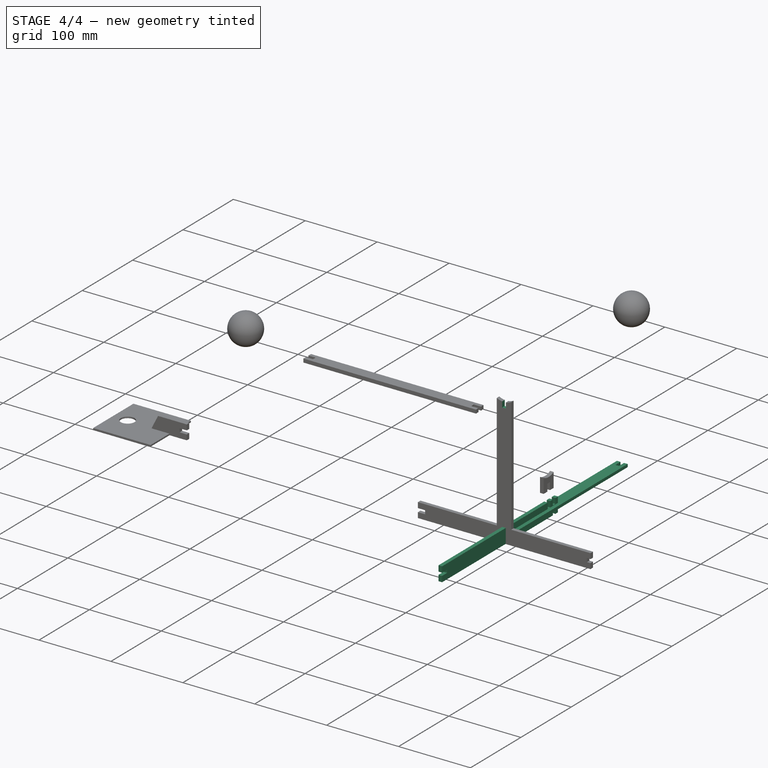
[diagram: stage 4 of 4 — iso view after this stage's code; geometry added in this stage tinted green]
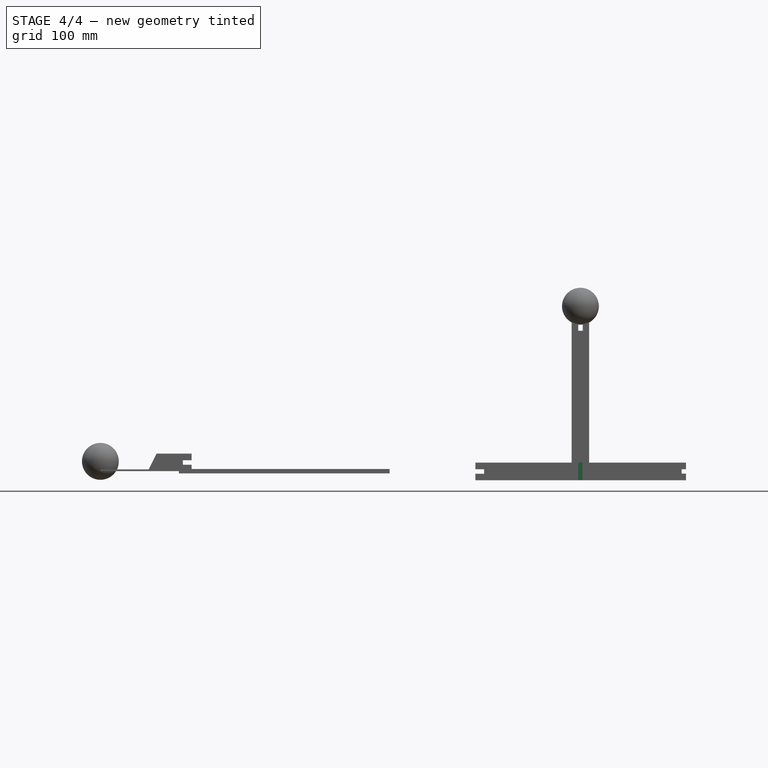
[diagram: stage 4 of 4 — front view after this stage's code; geometry added in this stage tinted green]
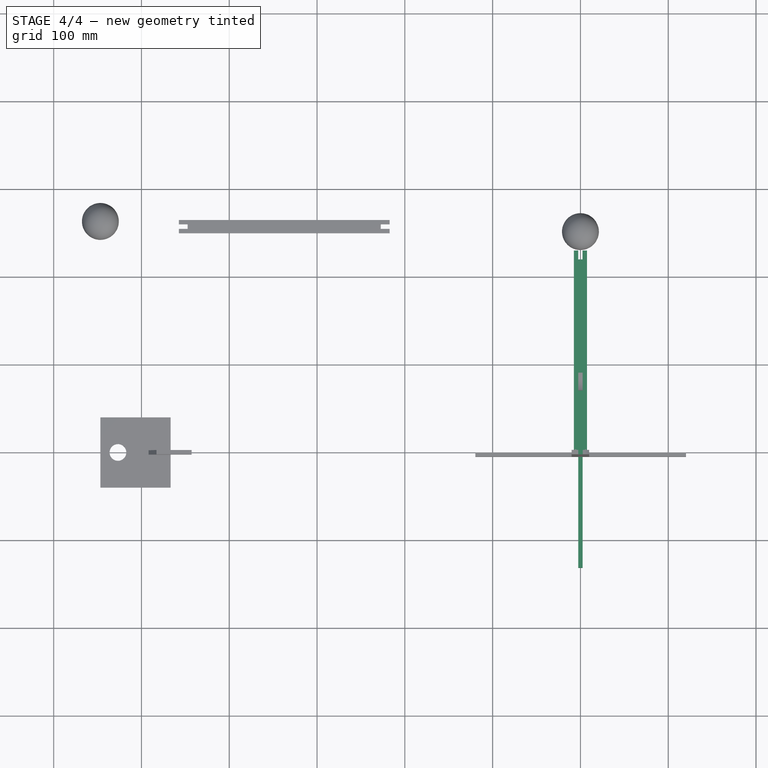
[diagram: stage 4 of 4 — top view after this stage's code; geometry added in this stage tinted green]
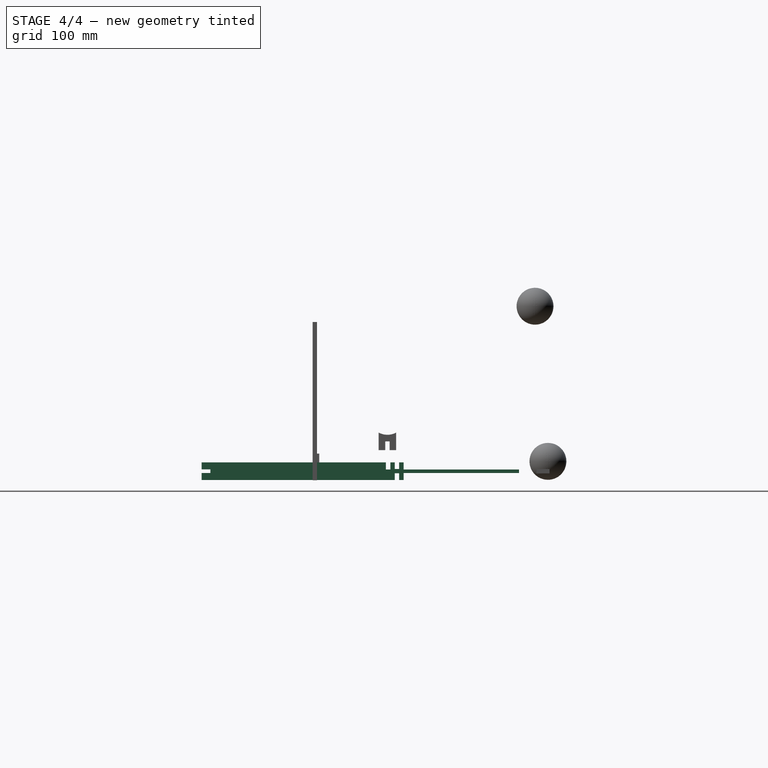
[diagram: stage 4 of 4 — right view after this stage's code; geometry added in this stage tinted green]
FEATURE [Sketcher::SketchObject] Sketch  label="Base Leg Connection Sketch"
  ArcFitTolerance = 1e-06
  AttachmentSupport = -> [XY_Plane001]
  FullyConstrained = true
  MakeInternals = false
  MapMode = 5
  expr: Constraints[14] = <<Monitor Chassis Parameters>>.GSCalibrationToolConnectionHoleSideLength - 0.5 * <<Monitor Chassis Parameters>>.GSPartFitExtraToleranceDistance
  expr: Constraints[15] = 0.5 * <<Monitor Chassis Parameters>>.GSCalibrationToolConnectionHoleSideLength
  expr: Constraints[16] = 1.2 * <<Monitor Chassis Parameters>>.GSBasePowerBoxSideThickness
  expr: Constraints[20] = 3 * <<Monitor Chassis Parameters>>.GSCalibrationToolConnectionHoleSideLength
  expr: Constraints[21] = 1.5 * <<Monitor Chassis Parameters>>.GSCalibrationToolConnectionHoleSideLength
  expr: Constraints[22] = <<Monitor Chassis Parameters>>.GSBasePowerBoxSideThickness
  sketch-geometry (8):
    g0: LineSegment StartX=-2 StartY=0 StartZ=0 EndX=-2 EndY=-4.8 EndZ=0
    g1: LineSegment StartX=-2 StartY=-4.8 StartZ=0 EndX=1.9 EndY=-4.8 EndZ=0
    g2: LineSegment StartX=1.9 StartY=-4.8 StartZ=0 EndX=1.9 EndY=0 EndZ=0
    g3: LineSegment StartX=6 StartY=0 StartZ=0 EndX=6 EndY=4 EndZ=0
    g4: LineSegment StartX=-6 StartY=4 StartZ=0 EndX=-6 EndY=0 EndZ=0
    g5: LineSegment StartX=-6 StartY=0 StartZ=0 EndX=-2 EndY=0 EndZ=0
    g6: LineSegment StartX=1.9 StartY=0 StartZ=0 EndX=6 EndY=0 EndZ=0
    g7: LineSegment StartX=-6 StartY=4 StartZ=0 EndX=6 EndY=4 EndZ=0
  constraints (24):
    c: Coincident(g0,g1)
    c: Coincident(g1,g2)
    c: Vertical(g0)
    c: Vertical(g2)
    c: Horizontal(g1)
    c: PointOnObject(g0,g-1)
    c: Vertical(g3)
    c: Vertical(g4)
    c: PointOnObject(g4,g-1)
    c: Coincident(g5,g4)
    c: Coincident(g5,g0)
    c: Coincident(g6,g2)
    c: Coincident(g6,g3)
    c: Horizontal(g6)
    c: DistanceX(g0,g1) = 3.9
    c: DistanceX(g0,g-1) = 2
    c: DistanceY(g0,g0) = 4.8
    c: Coincident(g7,g4)
    c: Coincident(g7,g3)
    c: Horizontal(g7)
    c: DistanceX(g4,g3) = 12
    c: DistanceX(g4,g-1) = 6
    c: DistanceY(g3,g3) = 4
    c: Horizontal(g2,g-1)
FEATURE [App::Link] Link  label="Monitor Chassis Parameters"
  LinkedObject = -> <external ../Master Document.FCStd>#Spreadsheet
FEATURE [PartDesign::Pad] Pad  label="Base Leg Connection Pad"
  Direction = (0,0,1)
  Length = 1.9
  Length2 = 2
  Profile = -> Sketch
  ReferenceAxis = -> Sketch [N_Axis]
  Suppressed = false
  Type = 4
  expr: Length = 0.5 * <<Monitor Chassis Parameters>>.GSCalibrationToolConnectionHoleSideLength - 0.5 * <<Monitor Chassis Parameters>>.GSPartFitExtraToleranceDistance
  expr: Length2 = 0.5 * <<Monitor Chassis Parameters>>.GSCalibrationToolConnectionHoleSideLength
FEATURE [Sketcher::SketchObject] Sketch001  label="Base Leg Sketch"
  ArcFitTolerance = 1e-06
  AttachmentSupport = -> [XY_Plane001]
  FullyConstrained = true
  MakeInternals = false
  MapMode = 5
  expr: Constraints[21] = <<Monitor Chassis Parameters>>.GSCalibrationToolLegConnectionCutInLength
  expr: Constraints[22] = <<Monitor Chassis Parameters>>.GSCalibrationToolLegConnectionCutInWidth - 0.5 * <<Monitor Chassis Parameters>>.GSPartFitExtraToleranceDistance
  expr: Constraints[23] = 0.5 * <<Monitor Chassis Parameters>>.GSCalibrationToolLegConnectionCutInWidth
  expr: Constraints[6] = <<Monitor Chassis Parameters>>.GSCalibrationToolHorizontalLegWidth
  expr: Constraints[7] = 0.5 * <<Monitor Chassis Parameters>>.GSCalibrationToolHorizontalLegWidth
  expr: Constraints[8] = <<Monitor Chassis Parameters>>.GSCalibrationToolBaseLegLength
  sketch-geometry (8):
    g0: LineSegment StartX=-7.5 StartY=0 StartZ=0 EndX=7.5 EndY=0 EndZ=0
    g1: LineSegment StartX=7.5 StartY=0 StartZ=0 EndX=7.5 EndY=230 EndZ=0
    g2: LineSegment StartX=-7.5 StartY=230 StartZ=0 EndX=-7.5 EndY=0 EndZ=0
    g3: LineSegment StartX=-7.5 StartY=230 StartZ=0 EndX=-2.5 EndY=230 EndZ=0
    g4: LineSegment StartX=-2.5 StartY=230 StartZ=0 EndX=-2.5 EndY=220 EndZ=0
    g5: LineSegment StartX=-2.5 StartY=220 StartZ=0 EndX=2.4 EndY=220 EndZ=0
    g6: LineSegment StartX=2.4 StartY=220 StartZ=0 EndX=2.4 EndY=230 EndZ=0
    g7: LineSegment StartX=2.4 StartY=230 StartZ=0 EndX=7.5 EndY=230 EndZ=0
  constraints (24):
    c: Coincident(g0,g1)
    c: Coincident(g2,g0)
    c: Horizontal(g0)
    c: Vertical(g1)
    c: Vertical(g2)
    c: PointOnObject(g0,g-1)
    c: DistanceX(g2,g1) = 15
    c: DistanceX(g0,g-1) = 7.5
    c: DistanceY(g0,g2) = 230
    c: Coincident(g3,g2)
    c: Horizontal(g3)
    c: Coincident(g4,g3)
    c: Vertical(g4)
    c: Coincident(g5,g4)
    c: Horizontal(g5)
    c: Coincident(g6,g5)
    c: Vertical(g6)
    c: Coincident(g7,g6)
    c: Coincident(g7,g1)
    c: Horizontal(g7)
    c: Horizontal(g3,g6)
    c: DistanceY(g4,g3) = 10
    c: DistanceX(g4,g5) = 4.9
    c: DistanceX(g4,g-1) = 2.5
FEATURE [PartDesign::Pad] Pad001  label="Base Leg Pad"
  BaseFeature = -> Pad
  Direction = (0,0,1)
  Length = 1.9
  Length2 = 2
  Profile = -> Sketch001
  ReferenceAxis = -> Sketch001 [N_Axis]
  Suppressed = false
  Type = 4
  expr: Length = 0.5 * <<Monitor Chassis Parameters>>.GSCalibrationToolHorizontalLegDepth - 0.5 * <<Monitor Chassis Parameters>>.GSPartFitExtraToleranceDistance
  expr: Length2 = 0.5 * <<Monitor Chassis Parameters>>.GSCalibrationToolHorizontalLegDepth
FEATURE [PartDesign::Body] Body  label="Base Connection Leg Body"
  AllowCompound = false
  Group = -> [Sketch,Pad,Sketch001,Pad001]
  Origin = -> Origin001
  Placement = pos=(0,-174.1,0) rot=(0,0,1;0rad)
  Tip = -> Pad001
FEATURE [Sketcher::SketchObject] Sketch002  label="Z-Axis Leg Sketch"
  ArcFitTolerance = 1e-06
  AttachmentSupport = -> [YZ_Plane002]
  FullyConstrained = false
  MakeInternals = false
  MapMode = 5
  Placement = pos=(0,0,0) rot=(0.57735,0.57735,0.57735;2.0944rad)
  expr: Constraints[44] = <<Monitor Chassis Parameters>>.GSCalibrationToolHorizontalLegDepth
  expr: Constraints[45] = <<Monitor Chassis Parameters>>.GSCalibrationToolVerticalLegHeight
  expr: Constraints[48] = 0.5 * <<Monitor Chassis Parameters>>.GSCalibrationToolVerticalLegHeight - 0.5 * <<Monitor Chassis Parameters>>.GSCalibrationToolHorizontalLegDepth
  expr: Constraints[49] = 0.5 * <<Monitor Chassis Parameters>>.GSCalibrationToolHorizontalLegDepth
  expr: Constraints[50] = <<Monitor Chassis Parameters>>.GSCalibrationToolLegConnectionCutInLength
  expr: Constraints[51] = <<Monitor Chassis Parameters>>.GSCalibrationToolVerticalLegWidth + 0.5 * <<Monitor Chassis Parameters>>.GSPartFitExtraToleranceDistance
  expr: Constraints[52] = <<Monitor Chassis Parameters>>.GSCalibrationDefaultLegThickness + 0.5 * <<Monitor Chassis Parameters>>.GSPartFitExtraToleranceDistance
  expr: Constraints[53] = <<Monitor Chassis Parameters>>.GSCalibrationToolVerticalLegWidth
  expr: Constraints[54] = <<Monitor Chassis Parameters>>.GSCalibrationToolVerticalLegWidth
  expr: Constraints[55] = <<Monitor Chassis Parameters>>.GSCalibrationToolZAxisLegLength
  expr: Constraints[56] = <<Monitor Chassis Parameters>>.GSCalibrationDefaultLegCutoutWidth - 0.5 * <<Monitor Chassis Parameters>>.GSPartFitExtraToleranceDistance
  expr: Constraints[57] = 0.5 * <<Monitor Chassis Parameters>>.GSCalibrationToolVerticalLegHeight - 0.5 * <<Monitor Chassis Parameters>>.GSCalibrationDefaultLegCutoutWidth
  expr: Constraints[58] = 0.5 * <<Monitor Chassis Parameters>>.GSCalibrationToolVerticalLegHeight
  sketch-geometry (20):
    g0: LineSegment StartX=-131.429 StartY=10 StartZ=0 EndX=-131.429 EndY=2 EndZ=0
    g1: LineSegment StartX=-131.429 StartY=2 StartZ=0 EndX=-121.429 EndY=2 EndZ=0
    g2: LineSegment StartX=-121.429 StartY=2 StartZ=0 EndX=-121.429 EndY=-2 EndZ=0
    g3: LineSegment StartX=-121.429 StartY=-2 StartZ=0 EndX=-131.429 EndY=-2 EndZ=0
    g4: LineSegment StartX=-131.429 StartY=-2 StartZ=0 EndX=-131.429 EndY=-10 EndZ=0
    g5: LineSegment StartX=-131.429 StartY=-10 StartZ=0 EndX=88.4705 EndY=-10 EndZ=0
    g6: LineSegment StartX=88.4705 StartY=-10 StartZ=0 EndX=88.4705 EndY=-2.4 EndZ=0
    g7: LineSegment StartX=88.4705 StartY=-2.4 StartZ=0 EndX=93.5705 EndY=-2.4 EndZ=0
    g8: LineSegment StartX=93.5705 StartY=-2.4 StartZ=0 EndX=93.5705 EndY=-10 EndZ=0
    g9: LineSegment StartX=93.5705 StartY=-10 StartZ=0 EndX=98.5705 EndY=-10 EndZ=0
    g10: LineSegment StartX=98.5705 StartY=-10 StartZ=0 EndX=98.5705 EndY=10 EndZ=0
    g11: LineSegment StartX=98.5705 StartY=10 StartZ=0 EndX=93.5705 EndY=10 EndZ=0
    g12: LineSegment StartX=93.5705 StartY=10 StartZ=0 EndX=93.5705 EndY=2.5 EndZ=0
    g13: LineSegment StartX=78.3705 StartY=-4e-16 StartZ=0 EndX=78.3705 EndY=10 EndZ=0
    g14: LineSegment StartX=78.3705 StartY=10 StartZ=0 EndX=-131.429 EndY=10 EndZ=0
    g15: LineSegment StartX=78.3705 StartY=-4e-16 StartZ=0 EndX=83.4705 EndY=-4e-16 EndZ=0
    g16: LineSegment StartX=93.5705 StartY=2.5 StartZ=0 EndX=88.4705 EndY=2.5 EndZ=0
    g17: LineSegment StartX=83.4705 StartY=-4e-16 StartZ=0 EndX=83.4705 EndY=10 EndZ=0
    g18: LineSegment StartX=83.4705 StartY=10 StartZ=0 EndX=88.4705 EndY=10 EndZ=0
    g19: LineSegment StartX=88.4705 StartY=10 StartZ=0 EndX=88.4705 EndY=2.5 EndZ=0
  constraints (59):
    c: Vertical(g0)
    c: Coincident(g1,g0)
    c: Horizontal(g1)
    c: Coincident(g2,g1)
    c: Vertical(g2)
    c: Coincident(g3,g2)
    c: Horizontal(g3)
    c: Coincident(g4,g3)
    c: Vertical(g4)
    c: Coincident(g5,g4)
    c: Horizontal(g5)
    c: Coincident(g6,g5)
    c: Vertical(g6)
    c: Coincident(g7,g6)
    c: Horizontal(g7)
    c: Coincident(g8,g7)
    c: Vertical(g8)
    c: Coincident(g9,g8)
    c: Horizontal(g9)
    c: Coincident(g10,g9)
    c: Vertical(g10)
    c: Coincident(g11,g10)
    c: Horizontal(g11)
    c: Coincident(g12,g11)
    c: Vertical(g12)
    c: Vertical(g13)
    c: Coincident(g14,g13)
    c: Coincident(g14,g0)
    c: Horizontal(g14)
    c: Coincident(g15,g13)
    c: Horizontal(g15)
    c: Coincident(g16,g12)
    c: Horizontal(g16)
    c: Coincident(g17,g15)
    c: Vertical(g17)
    c: Coincident(g18,g17)
    c: Horizontal(g18)
    c: Coincident(g19,g18)
    c: Coincident(g19,g16)
    c: Vertical(g19)
    c: Vertical(g0,g4)
    c: Vertical(g12,g7)
    c: Vertical(g16,g6)
    c: Horizontal(g13,g17)
    c: DistanceY(g2,g1) = 4
    c: DistanceY(g4,g0) = 20
    c: Horizontal(g11,g18)
    c: Horizontal(g8,g5)
    c: DistanceY(g1,g0) = 8
    c: DistanceY(g-1,g1) = 2
    c: DistanceX(g0,g1) = 10
    c: DistanceX(g18,g11) = 5.1
    c: DistanceX(g13,g15) = 5.1
    c: DistanceX(g17,g18) = 5
    c: DistanceX(g11,g10) = 5
    c: DistanceX(g4,g9) = 230
    c: DistanceY(g7,g12) = 4.9
    c: DistanceY(g12,g11) = 7.5
    c: DistanceY(g13,g13) = 10
FEATURE [PartDesign::Pad] Pad002  label="Z-Axis Leg Pad"
  Direction = (1,0,0)
  Length = 2.5
  Length2 = 2.5
  Placement = pos=(0,0,0) rot=(1,1,1;2.0944rad)
  Profile = -> Sketch002
  ReferenceAxis = -> Sketch002 [N_Axis]
  Suppressed = false
  Type = 4
  expr: Length = 0.5 * <<Monitor Chassis Parameters>>.GSCalibrationToolVerticalLegWidth
  expr: Length2 = 0.5 * <<Monitor Chassis Parameters>>.GSCalibrationToolVerticalLegWidth
FEATURE [Sketcher::SketchObject] Sketch004  label="Vertical Leg Ball Holder Cutout Sketch"
  ArcFitTolerance = 1e-06
  AttachmentSupport = -> [Pad003]
  ExternalGeometry = -> [Pad003]
  FullyConstrained = true
  MakeInternals = false
  MapMode = 5
  Placement = pos=(0,-5,0) rot=(1,0,0;1.5708rad)
  expr: Constraints[10] = <<Monitor Chassis Parameters>>.GSCalibrationToolVerticalBallHolderCutoutDepth
  expr: Constraints[8] = <<Monitor Chassis Parameters>>.GSCalibrationToolVerticalLegWidth + 0.5 * <<Monitor Chassis Parameters>>.GSPartFitExtraToleranceDistance
  expr: Constraints[9] = 0.5 * <<Monitor Chassis Parameters>>.GSCalibrationToolVerticalLegWidth
  sketch-geometry (4):
    g0: LineSegment StartX=-2.5 StartY=170 StartZ=0 EndX=-2.5 EndY=160 EndZ=0
    g1: LineSegment StartX=-2.5 StartY=160 StartZ=0 EndX=2.6 EndY=160 EndZ=0
    g2: LineSegment StartX=2.6 StartY=160 StartZ=0 EndX=2.6 EndY=170 EndZ=0
    g3: LineSegment StartX=2.6 StartY=170 StartZ=0 EndX=-2.5 EndY=170 EndZ=0
  constraints (12):
    c: Coincident(g0,g1)
    c: Coincident(g1,g2)
    c: Coincident(g2,g3)
    c: Coincident(g3,g0)
    c: Vertical(g0)
    c: Vertical(g2)
    c: Horizontal(g1)
    c: Horizontal(g3)
    c: DistanceX(g0,g2) = 5.1
    c: DistanceX(g0,g-1) = 2.5
    c: DistanceY(g0,g0) = 10
    c: Horizontal(g-4,g0)
FEATURE [PartDesign::Pocket] Pocket  label="Vertical Leg Ball Holder Cutout Pocket"
  BaseFeature = -> Pad003
  Direction = (0,1,-2e-16)
  Length = 5
  Length2 = 5
  Placement = pos=(0,0,0) rot=(1,0,0;1.5708rad)
  Profile = -> Sketch004
  ReferenceAxis = -> Sketch004 [N_Axis]
  Suppressed = false
  Type = 2
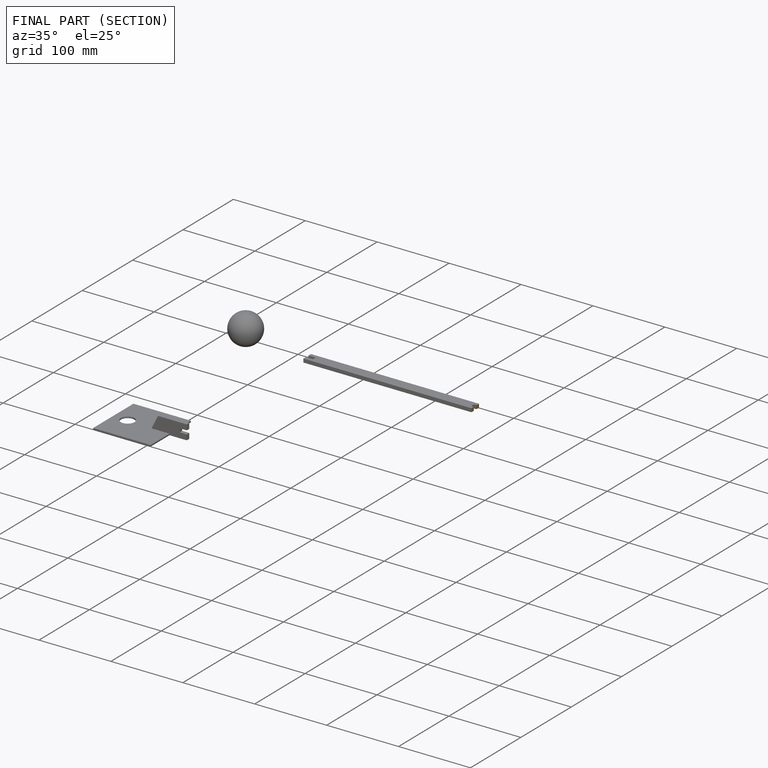
[diagram: finished part — half-section view (interior)]
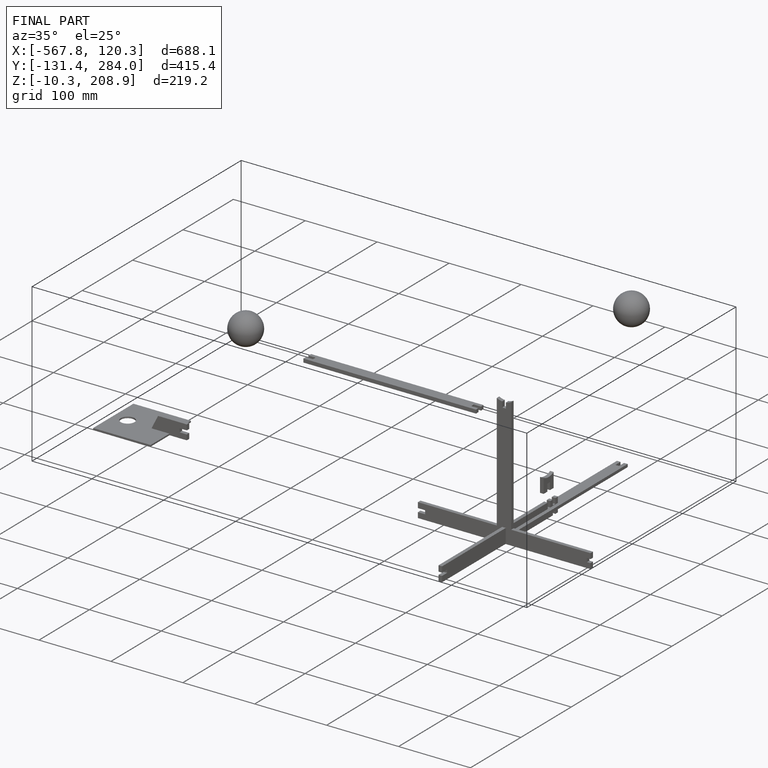
[diagram: finished part — iso view with bounding-box wireframe]
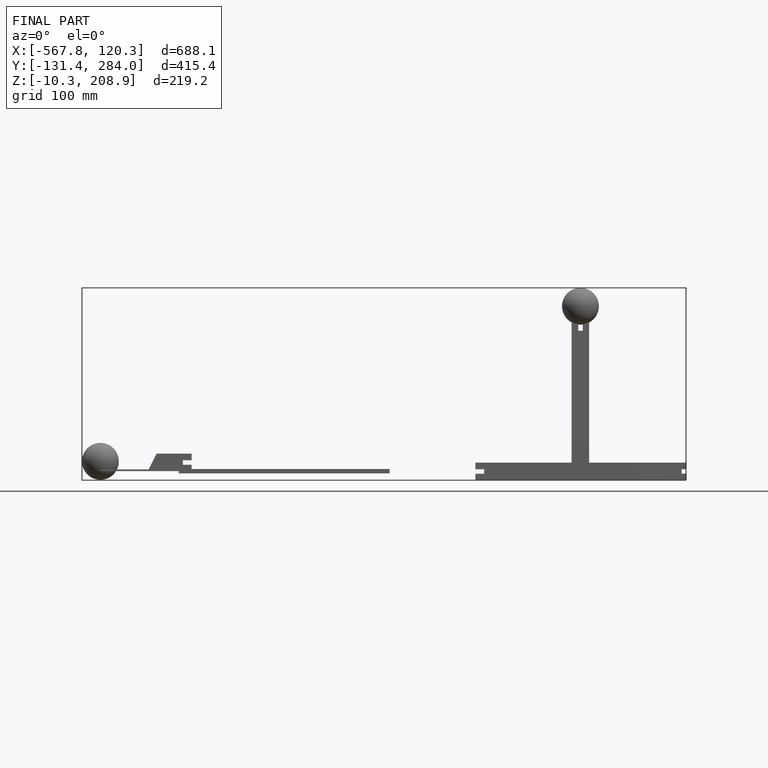
[diagram: finished part — front view with bounding-box wireframe]
